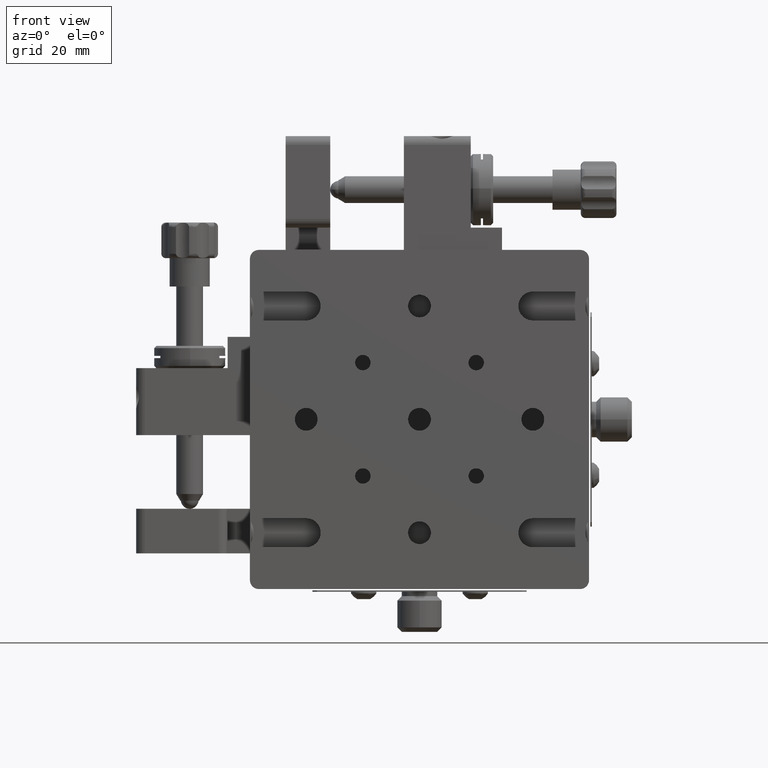
[diagram: clean part render]
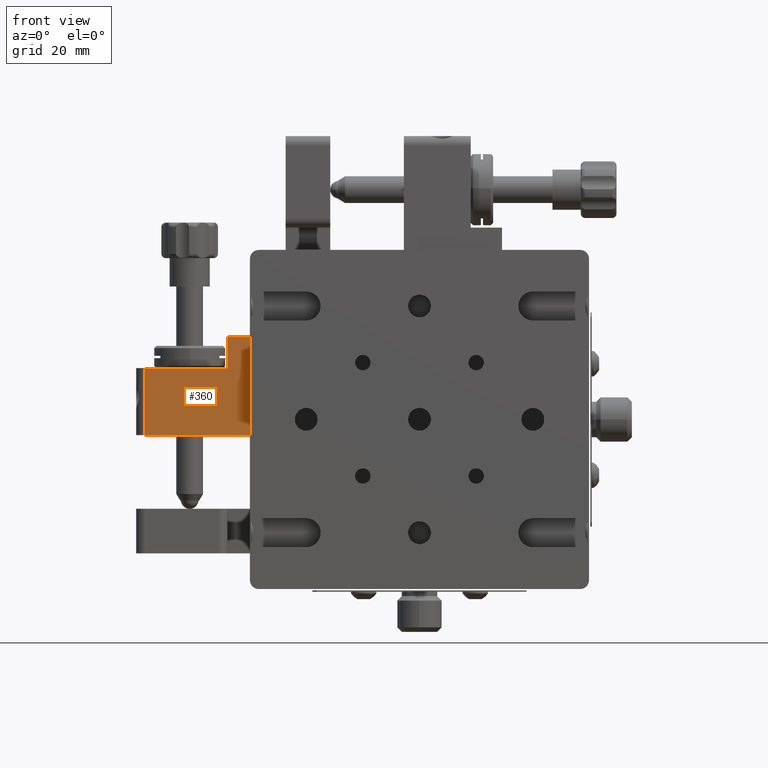
[diagram: same view with one face highlighted and labeled with its STEP entity id]
A machine part, front view. The second image highlights one B-rep face of the part: STEP entity #360.
In plain terms, the highlighted planar face has unit normal (0, -1, 0).
Its self-contained STEP definition (entity closure, byte-faithful):
#360 = ADVANCED_FACE ( 'NONE', ( #13564 ), #32980, .T. ) ;
#943 = LINE ( 'NONE', #3143, #21560 ) ;
#2110 = DIRECTION ( 'NONE',  ( 2.522337235784662800E-044, 1.609823385706477300E-014, 1.000000000000000000 ) ) ;
#2823 = VECTOR ( 'NONE', #35425, 1000.000000000000000 ) ;
#3143 = CARTESIAN_POINT ( 'NONE',  ( -46.40904611341228000, -3.279273254319934300, 114.6500000000000500 ) ) ;
#4069 = LINE ( 'NONE', #39276, #2823 ) ;
#4334 = VERTEX_POINT ( 'NONE', #7365 ) ;
#6892 = DIRECTION ( 'NONE',  ( -1.000000000000000000, 6.184884449504076500E-030, 1.269309860470837400E-016 ) ) ;
#7011 = DIRECTION ( 'NONE',  ( -2.522337235784663300E-044, -1.609823385706477000E-014, -1.000000000000000000 ) ) ;
#7365 = CARTESIAN_POINT ( 'NONE',  ( -20.90904611341227300, -3.279273254319821500, 121.6500000000000200 ) ) ;
#7703 = VERTEX_POINT ( 'NONE', #22775 ) ;
#8616 = ORIENTED_EDGE ( 'NONE', *, *, #19676, .T. ) ;
#9283 = CARTESIAN_POINT ( 'NONE',  ( -44.40904611341228000, -3.279273254320194100, 99.65000000000000600 ) ) ;
#9559 = CARTESIAN_POINT ( 'NONE',  ( -20.90904611341227300, -3.279273254320197700, 99.65000000000000600 ) ) ;
#9628 = EDGE_CURVE ( 'NONE', #43863, #26941, #48294, .T. ) ;
#12446 = VECTOR ( 'NONE', #7011, 1000.000000000000000 ) ;
#12811 = ORIENTED_EDGE ( 'NONE', *, *, #32385, .T. ) ;
#13200 = CARTESIAN_POINT ( 'NONE',  ( -44.40904611341228000, -3.279273254319934300, 114.6500000000000500 ) ) ;
#13564 = FACE_OUTER_BOUND ( 'NONE', #20669, .T. ) ;
#14942 = EDGE_CURVE ( 'NONE', #4334, #43863, #24482, .T. ) ;
#17384 = VECTOR ( 'NONE', #19003, 1000.000000000000000 ) ;
#17613 = EDGE_CURVE ( 'NONE', #49157, #7703, #4069, .T. ) ;
#17939 = CARTESIAN_POINT ( 'NONE',  ( -20.90904611341227300, -3.279273254319821500, 121.6500000000000200 ) ) ;
#19003 = DIRECTION ( 'NONE',  ( -1.000000000000000000, 4.141519752410293800E-030, -8.628933199850133700E-044 ) ) ;
#19676 = EDGE_CURVE ( 'NONE', #4334, #49157, #43708, .T. ) ;
#20669 = EDGE_LOOP ( 'NONE', ( #40212, #12811, #42185, #28387, #8616, #28196 ) ) ;
#21560 = VECTOR ( 'NONE', #6892, 1000.000000000000000 ) ;
#22773 = LINE ( 'NONE', #34169, #12446 ) ;
#22775 = CARTESIAN_POINT ( 'NONE',  ( -25.90904611341227000, -3.279273254319934300, 114.6500000000000500 ) ) ;
#24358 = VECTOR ( 'NONE', #34568, 1000.000000000000000 ) ;
#24482 = LINE ( 'NONE', #17939, #45086 ) ;
#25377 = DIRECTION ( 'NONE',  ( 4.733165431326042800E-030, -1.000000000000000000, 1.609823385706477300E-014 ) ) ;
#26941 = VERTEX_POINT ( 'NONE', #9283 ) ;
#27180 = EDGE_CURVE ( 'NONE', #7703, #40071, #943, .T. ) ;
#28196 = ORIENTED_EDGE ( 'NONE', *, *, #17613, .T. ) ;
#28387 = ORIENTED_EDGE ( 'NONE', *, *, #14942, .F. ) ;
#32385 = EDGE_CURVE ( 'NONE', #40071, #26941, #22773, .T. ) ;
#32980 = PLANE ( 'NONE',  #45234 ) ;
#34169 = CARTESIAN_POINT ( 'NONE',  ( -44.40904611341228000, -3.279273254319818000, 121.6500000000000200 ) ) ;
#34568 = DIRECTION ( 'NONE',  ( -1.000000000000000000, 4.141519752410293800E-030, -8.628933199850133700E-044 ) ) ;
#35425 = DIRECTION ( 'NONE',  ( -2.522337235784662800E-044, -1.609823385706477000E-014, -1.000000000000000000 ) ) ;
#39276 = CARTESIAN_POINT ( 'NONE',  ( -25.90904611341227000, -3.279273254319821500, 121.6500000000000200 ) ) ;
#40071 = VERTEX_POINT ( 'NONE', #13200 ) ;
#40212 = ORIENTED_EDGE ( 'NONE', *, *, #27180, .T. ) ;
#42154 = CARTESIAN_POINT ( 'NONE',  ( -44.40904611341228000, -3.279273254320197700, 99.65000000000000600 ) ) ;
#42185 = ORIENTED_EDGE ( 'NONE', *, *, #9628, .F. ) ;
#43316 = CARTESIAN_POINT ( 'NONE',  ( -25.90904611341227700, -3.279273254319821500, 121.6500000000000200 ) ) ;
#43708 = LINE ( 'NONE', #49958, #24358 ) ;
#43863 = VERTEX_POINT ( 'NONE', #9559 ) ;
#45053 = DIRECTION ( 'NONE',  ( -2.522337235784663300E-044, -1.609823385706477000E-014, -1.000000000000000000 ) ) ;
#45086 = VECTOR ( 'NONE', #45053, 1000.000000000000000 ) ;
#45234 = AXIS2_PLACEMENT_3D ( 'NONE', #48553, #25377, #2110 ) ;
#48294 = LINE ( 'NONE', #42154, #17384 ) ;
#48553 = CARTESIAN_POINT ( 'NONE',  ( -44.40904611341228000, -3.279273254319821500, 121.6500000000000200 ) ) ;
#49157 = VERTEX_POINT ( 'NONE', #43316 ) ;
#49958 = CARTESIAN_POINT ( 'NONE',  ( -44.40904611341228000, -3.279273254319821500, 121.6500000000000200 ) ) ;